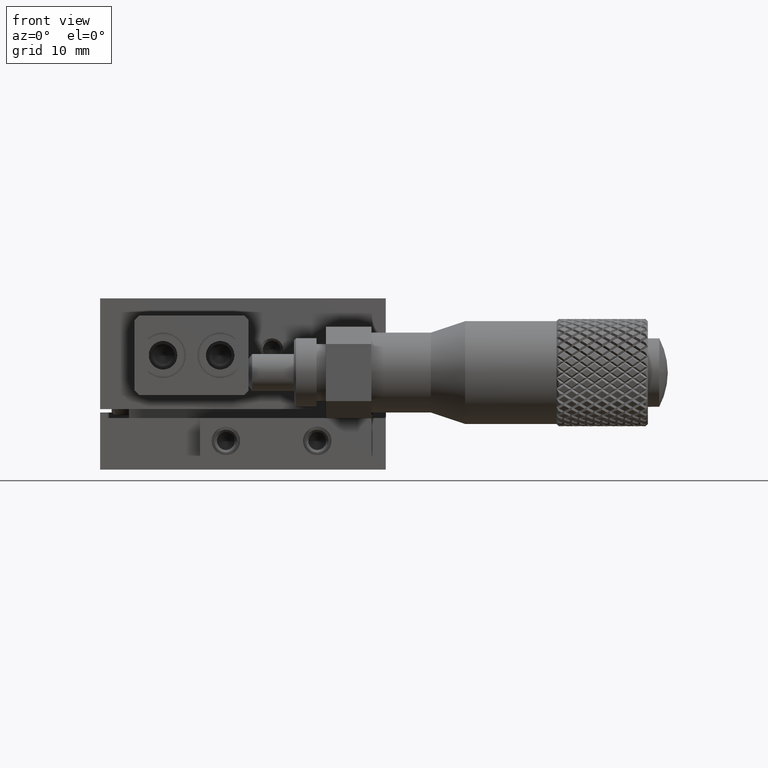
[diagram: clean part render]
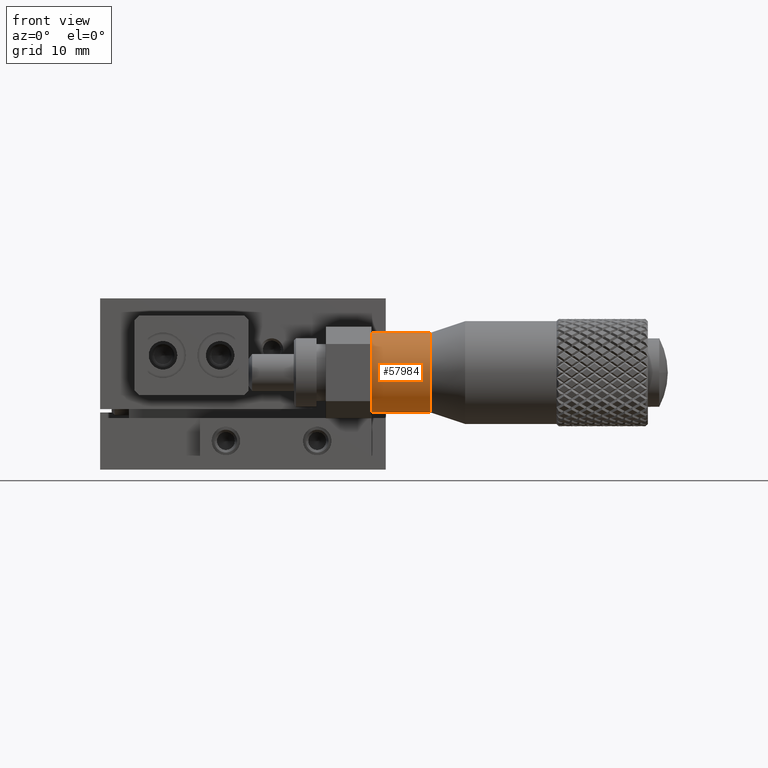
[diagram: same view with one face highlighted and labeled with its STEP entity id]
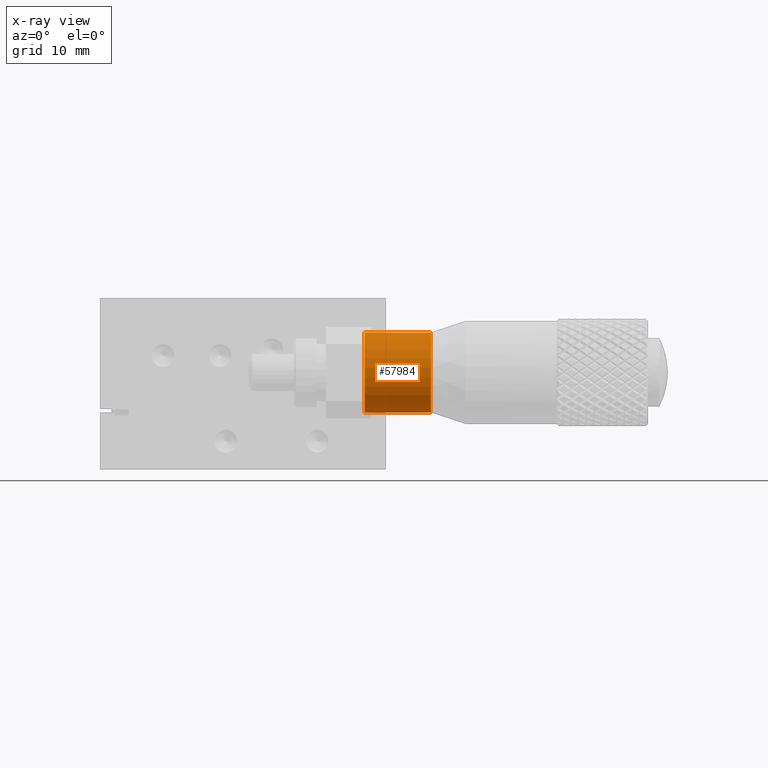
[diagram: x-ray of the same camera — body ghosted, the highlighted face saturated]
A machine part, front view. The second image highlights one B-rep face of the part: STEP entity #57984.
The next image is the same camera in x-ray: the body ghosted, the highlighted face saturated — about 0% of this face is hidden behind the body in this view.
In plain terms, the highlighted cylindrical surface (bore or boss wall) has radius 3.5 mm, axis along (-1, 0, 0).
Its self-contained STEP definition (entity closure, byte-faithful):
#1880 = AXIS2_PLACEMENT_3D ( 'NONE', #34008, #91511, #84477 ) ;
#3359 = EDGE_LOOP ( 'NONE', ( #68704 ) ) ;
#5191 = FACE_OUTER_BOUND ( 'NONE', #32805, .T. ) ;
#14133 = CARTESIAN_POINT ( 'NONE',  ( 10.65000000000000391, -17.00000000000000000, 8.500000000000000000 ) ) ;
#15399 = VERTEX_POINT ( 'NONE', #22954 ) ;
#15654 = DIRECTION ( 'NONE',  ( 0.000000000000000000, 0.000000000000000000, -1.000000000000000000 ) ) ;
#22638 = EDGE_CURVE ( 'NONE', #44766, #44766, #88241, .T. ) ;
#22954 = CARTESIAN_POINT ( 'NONE',  ( 16.45000000003592788, -17.00000000000000000, 4.999999999997499778 ) ) ;
#26485 = AXIS2_PLACEMENT_3D ( 'NONE', #14133, #48606, #42468 ) ;
#26921 = CYLINDRICAL_SURFACE ( 'NONE', #1880, 3.499999999999999556 ) ;
#32805 = EDGE_LOOP ( 'NONE', ( #48233 ) ) ;
#34008 = CARTESIAN_POINT ( 'NONE',  ( 37.19999999999986784, -17.00000000000000000, 8.500000000000000000 ) ) ;
#39205 = CARTESIAN_POINT ( 'NONE',  ( 16.45000000003592788, -17.00000000000000000, 8.500000000000000000 ) ) ;
#42468 = DIRECTION ( 'NONE',  ( 0.000000000000000000, 0.000000000000000000, 1.000000000000000000 ) ) ;
#42870 = CIRCLE ( 'NONE', #71494, 3.500000000002501110 ) ;
#44766 = VERTEX_POINT ( 'NONE', #88128 ) ;
#48233 = ORIENTED_EDGE ( 'NONE', *, *, #64703, .F. ) ;
#48606 = DIRECTION ( 'NONE',  ( 1.000000000000000000, -0.000000000000000000, -0.000000000000000000 ) ) ;
#57984 = ADVANCED_FACE ( 'NONE', ( #77415, #5191 ), #26921, .T. ) ;
#64703 = EDGE_CURVE ( 'NONE', #15399, #15399, #42870, .T. ) ;
#68704 = ORIENTED_EDGE ( 'NONE', *, *, #22638, .T. ) ;
#71494 = AXIS2_PLACEMENT_3D ( 'NONE', #39205, #80299, #15654 ) ;
#77415 = FACE_OUTER_BOUND ( 'NONE', #3359, .T. ) ;
#80299 = DIRECTION ( 'NONE',  ( 1.000000000000000000, -0.000000000000000000, -0.000000000000000000 ) ) ;
#84477 = DIRECTION ( 'NONE',  ( 0.000000000000000000, 0.000000000000000000, 1.000000000000000000 ) ) ;
#88128 = CARTESIAN_POINT ( 'NONE',  ( 10.65000000000000391, -17.00000000000000000, 12.00000000000000000 ) ) ;
#88241 = CIRCLE ( 'NONE', #26485, 3.499999999999999556 ) ;
#91511 = DIRECTION ( 'NONE',  ( -1.000000000000000000, 0.000000000000000000, 0.000000000000000000 ) ) ;